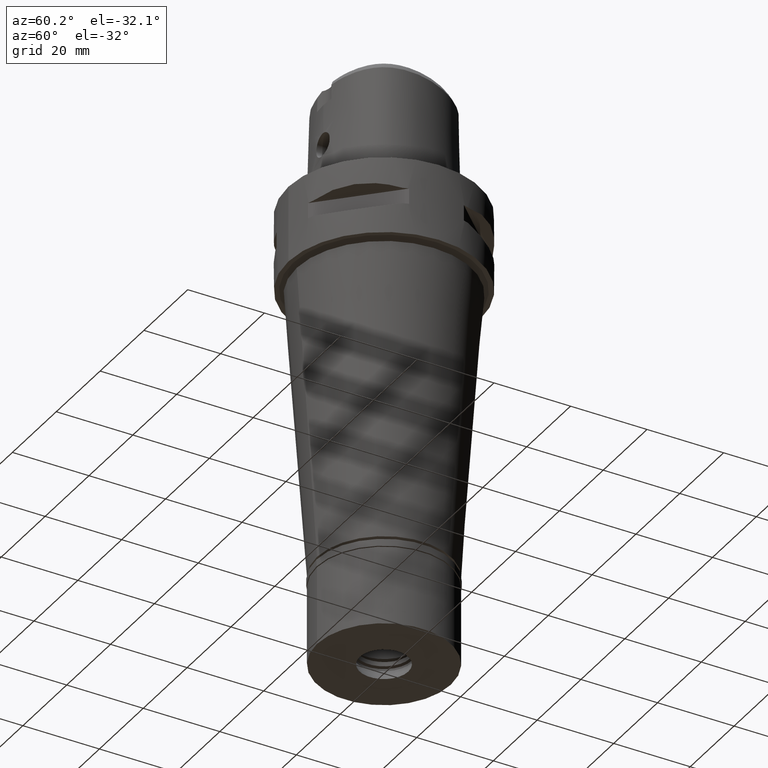
[diagram: clean part render]
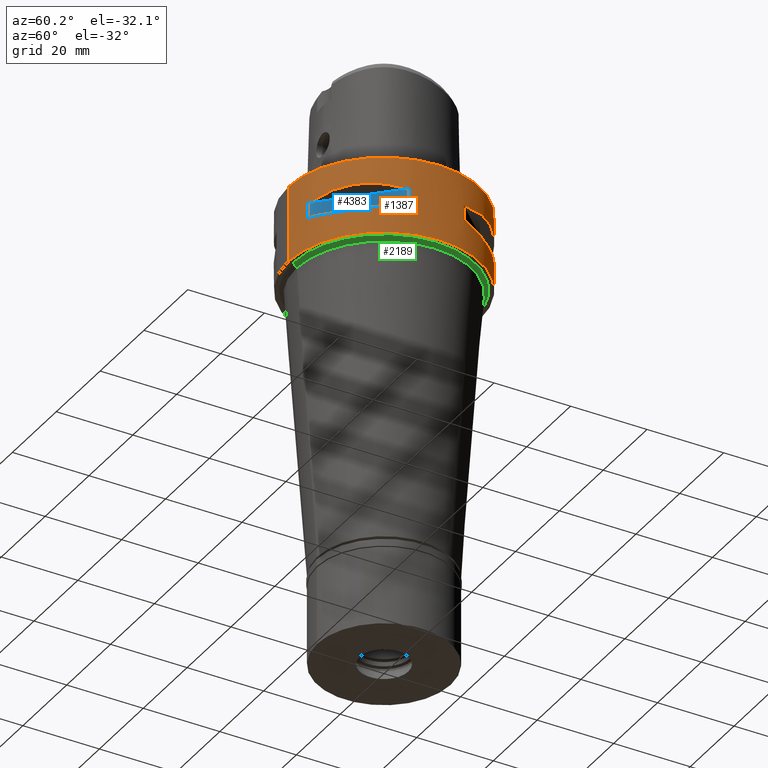
[diagram: same view with three faces highlighted in distinct colors, each labeled with its STEP entity id]
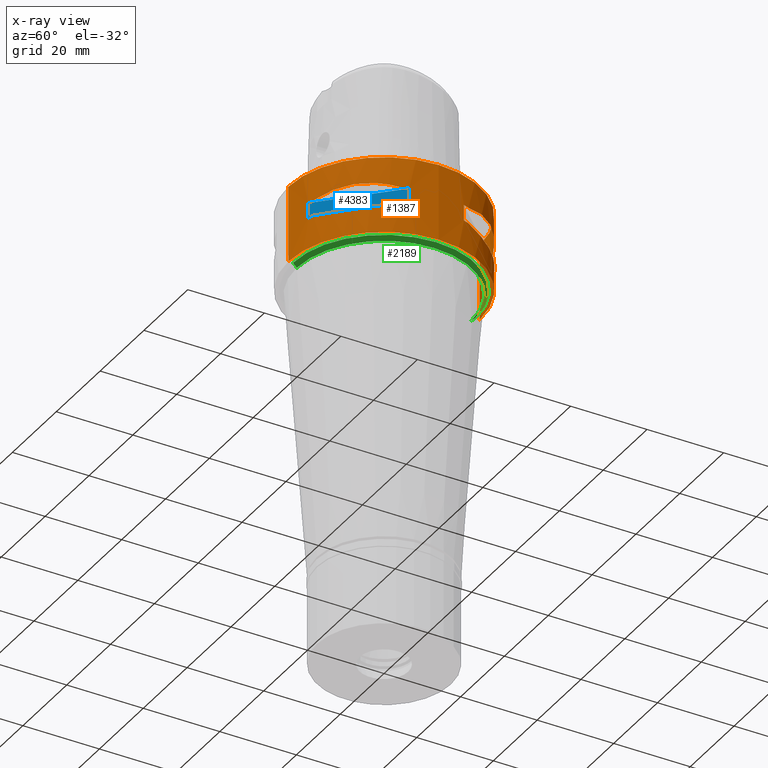
[diagram: x-ray of the same camera — body ghosted, the three highlighted faces saturated]
A machine part, auxiliary view with three faces highlighted in distinct colors.
The next image is the same camera in x-ray (body ghosted, the three faces saturated) — at least one of them is partly hidden behind the body in this view.
Their STEP definitions:

[orange] entity #1387 — the highlighted cylindrical surface (partial cylindrical patch) has radius 25 mm, axis along (0, 0, -1).
#13 = EDGE_CURVE ( 'NONE', #4450, #1569, #4097, .T. ) ;
#51 = CARTESIAN_POINT ( 'NONE',  ( 16.42437865147233111, -18.93096040785503220, -6.622505547239580181 ) ) ;
#105 = EDGE_CURVE ( 'NONE', #3764, #195, #4744, .T. ) ;
#142 = CARTESIAN_POINT ( 'NONE',  ( 23.95277699797999915, -7.159921374230999724, -7.950000000000000178 ) ) ;
#149 = VECTOR ( 'NONE', #450, 1000.000000000000000 ) ;
#173 = B_SPLINE_CURVE_WITH_KNOTS ( 'NONE', 3,
 ( #3807, #325, #3759, #271, #1115, #2626, #3358, #2261, #4534, #1806 ),
 .UNSPECIFIED., .F., .F.,
 ( 4, 2, 2, 2, 4 ),
 ( 0.0000000000000000000, 0.2500000000000000000, 0.5000000000000000000, 0.7500000000000000000, 1.000000000000000000 ),
 .UNSPECIFIED. ) ;
#184 = VERTEX_POINT ( 'NONE', #3859 ) ;
#185 = DIRECTION ( 'NONE',  ( 0.0000000000000000000, 0.0000000000000000000, 1.000000000000000000 ) ) ;
#195 = VERTEX_POINT ( 'NONE', #4710 ) ;
#238 = CARTESIAN_POINT ( 'NONE',  ( 21.05082155772089436, 13.48572973711263323, -13.04323036965343618 ) ) ;
#271 = CARTESIAN_POINT ( 'NONE',  ( 20.06077645874710313, 15.02693924547574866, -6.733132781305683601 ) ) ;
#322 = CARTESIAN_POINT ( 'NONE',  ( 23.13678124604550845, 9.515641234313701347, -12.27403800213050111 ) ) ;
#325 = CARTESIAN_POINT ( 'NONE',  ( 22.82438450745431524, 10.36314631860615876, -7.507504930525397135 ) ) ;
#328 = CARTESIAN_POINT ( 'NONE',  ( 20.92801700160322298, -13.67544437571097404, -13.07054629644096444 ) ) ;
#342 = ORIENTED_EDGE ( 'NONE', *, *, #1860, .F. ) ;
#346 = FACE_OUTER_BOUND ( 'NONE', #4954, .T. ) ;
#350 = CARTESIAN_POINT ( 'NONE',  ( 0.0000000000000000000, 1.294023040318999806E-14, 0.0000000000000000000 ) ) ;
#373 = CARTESIAN_POINT ( 'NONE',  ( 8.646484890756999775, -23.45715880140000209, -12.05000000000000071 ) ) ;
#397 = CARTESIAN_POINT ( 'NONE',  ( 12.20403021317722292, -21.82791133048418786, -12.83722430138600323 ) ) ;
#450 = DIRECTION ( 'NONE',  ( 0.0000000000000000000, 0.0000000000000000000, -1.000000000000000000 ) ) ;
#494 = CARTESIAN_POINT ( 'NONE',  ( 20.06074199769976829, -15.02698525043415145, -6.733118915137214167 ) ) ;
#519 = CARTESIAN_POINT ( 'NONE',  ( 10.36314631865839964, -22.82438450743505598, -7.507504930511911923 ) ) ;
#522 = ORIENTED_EDGE ( 'NONE', *, *, #3682, .T. ) ;
#532 = CARTESIAN_POINT ( 'NONE',  ( 0.0000000000000000000, 1.294023040318999806E-14, -7.950000000000000178 ) ) ;
#610 = VERTEX_POINT ( 'NONE', #4936 ) ;
#636 = AXIS2_PLACEMENT_3D ( 'NONE', #4711, #2728, #4261 ) ;
#642 = CARTESIAN_POINT ( 'NONE',  ( 8.646484890751999330, 23.45715880140000209, -12.05000000000000071 ) ) ;
#673 = FACE_BOUND ( 'NONE', #989, .T. ) ;
#679 = ORIENTED_EDGE ( 'NONE', *, *, #105, .F. ) ;
#693 = CARTESIAN_POINT ( 'NONE',  ( 20.02826730452214932, 15.06560254769159712, -13.27075471794772277 ) ) ;
#701 = VERTEX_POINT ( 'NONE', #3034 ) ;
#831 = ORIENTED_EDGE ( 'NONE', *, *, #1171, .T. ) ;
#863 = CIRCLE ( 'NONE', #4079, 24.99999999999999645 ) ;
#874 = VECTOR ( 'NONE', #918, 1000.000000000000000 ) ;
#889 = CARTESIAN_POINT ( 'NONE',  ( 0.0000000000000000000, 1.294023040318999806E-14, -12.05000000000000071 ) ) ;
#918 = DIRECTION ( 'NONE',  ( 0.0000000000000000000, 0.0000000000000000000, -1.000000000000000000 ) ) ;
#989 = EDGE_LOOP ( 'NONE', ( #2941, #1100, #3296, #679, #3108, #3364, #1014, #1348 ) ) ;
#1014 = ORIENTED_EDGE ( 'NONE', *, *, #4207, .T. ) ;
#1028 = CIRCLE ( 'NONE', #4872, 25.00000000000001066 ) ;
#1035 = VECTOR ( 'NONE', #3556, 1000.000000000000000 ) ;
#1041 = CARTESIAN_POINT ( 'NONE',  ( 13.74471461761685198, 20.88268233906084248, -13.08031795579737455 ) ) ;
#1078 = DIRECTION ( 'NONE',  ( 0.0000000000000000000, 0.0000000000000000000, -1.000000000000000000 ) ) ;
#1090 = CARTESIAN_POINT ( 'NONE',  ( 14.85488513038957592, 20.11654071401955335, -13.22076716108393413 ) ) ;
#1100 = ORIENTED_EDGE ( 'NONE', *, *, #4674, .F. ) ;
#1105 = CARTESIAN_POINT ( 'NONE',  ( 19.18226349639588690, -16.07509500018327131, -13.33749867752016449 ) ) ;
#1113 = CARTESIAN_POINT ( 'NONE',  ( 23.45715880140000209, 8.646484890756999775, -12.05000000000000071 ) ) ;
#1115 = CARTESIAN_POINT ( 'NONE',  ( 18.93096040781554024, 16.42437865151185505, -6.622505547253058289 ) ) ;
#1118 = CARTESIAN_POINT ( 'NONE',  ( 20.88268233906207172, -13.74471461761599400, -13.08031795579753087 ) ) ;
#1161 = CARTESIAN_POINT ( 'NONE',  ( 0.0000000000000000000, 1.294023040318999806E-14, -7.950000000000000178 ) ) ;
#1162 = VERTEX_POINT ( 'NONE', #2254 ) ;
#1171 = EDGE_CURVE ( 'NONE', #1569, #4809, #4948, .T. ) ;
#1259 = DIRECTION ( 'NONE',  ( 0.3458593956303108730, -0.9382863520558295534, 0.0000000000000000000 ) ) ;
#1295 = CARTESIAN_POINT ( 'NONE',  ( 22.82437128824116712, -10.36318218117755841, -7.507495686413087732 ) ) ;
#1305 = LINE ( 'NONE', #4366, #874 ) ;
#1348 = ORIENTED_EDGE ( 'NONE', *, *, #3101, .T. ) ;
#1360 = DIRECTION ( 'NONE',  ( 0.0000000000000000000, 0.0000000000000000000, -1.000000000000000000 ) ) ;
#1381 = VERTEX_POINT ( 'NONE', #3707 ) ;
#1387 = ADVANCED_FACE ( 'NONE', ( #346, #673, #2605 ), #2283, .T. ) ;
#1394 = CARTESIAN_POINT ( 'NONE',  ( 8.646484890756999775, -23.45715880140000209, -12.05000000000000071 ) ) ;
#1398 = CARTESIAN_POINT ( 'NONE',  ( 21.01958685664017068, 13.53433973752500918, -13.05032380590188446 ) ) ;
#1413 = EDGE_CURVE ( 'NONE', #3366, #4069, #173, .T. ) ;
#1451 = CARTESIAN_POINT ( 'NONE',  ( 21.20561591939435786, 13.24197703503935486, -13.00691327926270446 ) ) ;
#1459 = CARTESIAN_POINT ( 'NONE',  ( 15.06560254765663132, -20.02826730455345583, -13.27075471794622885 ) ) ;
#1476 = CARTESIAN_POINT ( 'NONE',  ( 10.38516041958474645, 22.81626994451295332, -12.49816953211793802 ) ) ;
#1483 = CARTESIAN_POINT ( 'NONE',  ( 16.43106916202457057, -18.92421359264944769, -13.37747608848233760 ) ) ;
#1497 = CARTESIAN_POINT ( 'NONE',  ( 21.00321793043583796, 13.55971422200765630, -13.05400030967367897 ) ) ;
#1532 = DIRECTION ( 'NONE',  ( 0.0000000000000000000, 0.0000000000000000000, -1.000000000000000000 ) ) ;
#1533 = CARTESIAN_POINT ( 'NONE',  ( 23.95277699797999915, 7.159921374230999724, -12.05000000000000071 ) ) ;
#1547 = AXIS2_PLACEMENT_3D ( 'NONE', #2182, #2211, #4511 ) ;
#1569 = VERTEX_POINT ( 'NONE', #4757 ) ;
#1588 = CARTESIAN_POINT ( 'NONE',  ( 8.646484890751999330, -23.45715880140000209, -7.949999999998999201 ) ) ;
#1589 = CARTESIAN_POINT ( 'NONE',  ( 0.0000000000000000000, 1.294023040318999806E-14, -7.950000000000000178 ) ) ;
#1604 = DIRECTION ( 'NONE',  ( 0.0000000000000000000, 0.0000000000000000000, 1.000000000000000000 ) ) ;
#1639 = CARTESIAN_POINT ( 'NONE',  ( 15.02693924554282034, -20.06077645869683579, -6.733132781285452673 ) ) ;
#1704 = CARTESIAN_POINT ( 'NONE',  ( 0.0000000000000000000, 1.294023040318999806E-14, -7.950000000000000178 ) ) ;
#1719 = CIRCLE ( 'NONE', #3232, 25.00000000000001066 ) ;
#1729 = DIRECTION ( 'NONE',  ( 0.9581110799190402094, 0.2863968549694120291, 0.0000000000000000000 ) ) ;
#1747 = CARTESIAN_POINT ( 'NONE',  ( 0.0000000000000000000, 1.294023040318999806E-14, -12.05000000000000071 ) ) ;
#1760 = CARTESIAN_POINT ( 'NONE',  ( 0.0000000000000000000, 25.00000000000000000, 0.0000000000000000000 ) ) ;
#1779 = CARTESIAN_POINT ( 'NONE',  ( 17.05439749817592343, 18.30096971347850499, -13.37751056790020598 ) ) ;
#1806 = CARTESIAN_POINT ( 'NONE',  ( 8.646484890751999330, 23.45715880140000209, -7.949999999998999201 ) ) ;
#1812 = VERTEX_POINT ( 'NONE', #3733 ) ;
#1836 = CARTESIAN_POINT ( 'NONE',  ( 18.30096971348435630, -17.05439749817190176, -13.37751056790094850 ) ) ;
#1860 = EDGE_CURVE ( 'NONE', #1162, #4919, #2678, .T. ) ;
#1869 = VECTOR ( 'NONE', #2172, 1000.000000000000000 ) ;
#1915 = AXIS2_PLACEMENT_3D ( 'NONE', #1704, #185, #2919 ) ;
#1931 = CARTESIAN_POINT ( 'NONE',  ( 20.77616787493668937, -13.90573822667970916, -13.10257122103325145 ) ) ;
#1961 = CARTESIAN_POINT ( 'NONE',  ( 23.45715880140000209, -8.646484890751999330, -7.949999999998999201 ) ) ;
#1996 = CARTESIAN_POINT ( 'NONE',  ( 23.95277699797999915, -7.159921374230999724, -12.05000000000000071 ) ) ;
#2035 = LINE ( 'NONE', #4287, #1035 ) ;
#2037 = CIRCLE ( 'NONE', #2424, 25.00000000000000000 ) ;
#2072 = CIRCLE ( 'NONE', #636, 24.99999999999999645 ) ;
#2158 = CIRCLE ( 'NONE', #1915, 25.00000000000001066 ) ;
#2172 = DIRECTION ( 'NONE',  ( 0.0000000000000000000, 0.0000000000000000000, -1.000000000000000000 ) ) ;
#2173 = ORIENTED_EDGE ( 'NONE', *, *, #3294, .F. ) ;
#2182 = CARTESIAN_POINT ( 'NONE',  ( 0.0000000000000000000, 1.294023040318999806E-14, 5.665000000000000036 ) ) ;
#2198 = EDGE_CURVE ( 'NONE', #4069, #1812, #3940, .T. ) ;
#2211 = DIRECTION ( 'NONE',  ( 0.0000000000000000000, 0.0000000000000000000, -1.000000000000000000 ) ) ;
#2215 = CARTESIAN_POINT ( 'NONE',  ( 10.78455809745186755, -22.58788056562029922, -12.56798337782941566 ) ) ;
#2254 = CARTESIAN_POINT ( 'NONE',  ( 23.45715880140000209, 8.646484890756999775, -12.05000000000000071 ) ) ;
#2258 = CARTESIAN_POINT ( 'NONE',  ( 16.07509500019029502, 19.18226349638565509, -13.33749867751885532 ) ) ;
#2261 = CARTESIAN_POINT ( 'NONE',  ( 11.99636231264435615, 22.00752022556853404, -7.175618606703327629 ) ) ;
#2264 = CARTESIAN_POINT ( 'NONE',  ( 13.55971422200820520, -21.00321793043535479, -13.05400030967370206 ) ) ;
#2283 = CYLINDRICAL_SURFACE ( 'NONE', #1547, 25.00000000000000000 ) ;
#2287 = EDGE_CURVE ( 'NONE', #4809, #3570, #2037, .T. ) ;
#2304 = EDGE_CURVE ( 'NONE', #3764, #4424, #1719, .T. ) ;
#2343 = CARTESIAN_POINT ( 'NONE',  ( 8.646484890751999330, 23.45715880140000209, -12.05000000000000071 ) ) ;
#2349 = LINE ( 'NONE', #1996, #4571 ) ;
#2360 = DIRECTION ( 'NONE',  ( 0.0000000000000000000, 0.0000000000000000000, 1.000000000000000000 ) ) ;
#2389 = AXIS2_PLACEMENT_3D ( 'NONE', #532, #3598, #1729 ) ;
#2424 = AXIS2_PLACEMENT_3D ( 'NONE', #3547, #2890, #3640 ) ;
#2426 = CARTESIAN_POINT ( 'NONE',  ( 18.93096040785499667, -16.42437865147237730, -6.622496303240420268 ) ) ;
#2428 = DIRECTION ( 'NONE',  ( 0.0000000000000000000, 0.0000000000000000000, -1.000000000000000000 ) ) ;
#2433 = CARTESIAN_POINT ( 'NONE',  ( 0.0000000000000000000, -25.00000000000000000, -20.00000000000000000 ) ) ;
#2546 = CARTESIAN_POINT ( 'NONE',  ( 13.62920640916679993, 20.95817024473859291, -13.06397973560673265 ) ) ;
#2551 = CARTESIAN_POINT ( 'NONE',  ( 23.45715880140000209, 8.646484890751999330, -7.949999999998999201 ) ) ;
#2585 = DIRECTION ( 'NONE',  ( 0.0000000000000000000, 1.000000000000000000, 0.0000000000000000000 ) ) ;
#2605 = FACE_BOUND ( 'NONE', #3729, .T. ) ;
#2626 = CARTESIAN_POINT ( 'NONE',  ( 16.42437865151178045, 18.93096040781560063, -6.622496303226939496 ) ) ;
#2630 = CARTESIAN_POINT ( 'NONE',  ( 20.56020460723486565, -14.22535762328174691, -13.14488865845287080 ) ) ;
#2646 = CARTESIAN_POINT ( 'NONE',  ( 13.90573822668135406, 20.77616787493428774, -13.10257122103294058 ) ) ;
#2678 = B_SPLINE_CURVE_WITH_KNOTS ( 'NONE', 3,
 ( #1113, #322, #2922, #4484, #3383, #1451, #3353, #238, #1398, #1497, #693, #4906, #1779, #2258, #1090, #3303, #2646, #1041, #4508, #2546, #3779, #4078, #1476, #642 ),
 .UNSPECIFIED., .F., .F.,
 ( 4, 1, 1, 1, 1, 1, 2, 2, 2, 1, 1, 1, 1, 1, 2, 2, 4 ),
 ( 0.0000000000000000000, 0.1249999999999982236, 0.1874999999999974465, 0.2187499999999970302, 0.2343749999999969469, 0.2421874999999968081, 0.2460937499999968359, 0.2499999999999968914, 0.4999999999999973355, 0.6249999999999973355, 0.6874999999999976685, 0.7187499999999978906, 0.7343749999999980016, 0.7421874999999980016, 0.7460937499999978906, 0.7499999999999978906, 1.000000000000000000 ),
 .UNSPECIFIED. ) ;
#2708 = VERTEX_POINT ( 'NONE', #4586 ) ;
#2728 = DIRECTION ( 'NONE',  ( 0.0000000000000000000, 0.0000000000000000000, -1.000000000000000000 ) ) ;
#2749 = CARTESIAN_POINT ( 'NONE',  ( 0.0000000000000000000, 1.294023040318999806E-14, -12.05000000000000071 ) ) ;
#2784 = CIRCLE ( 'NONE', #2389, 24.99999999999999645 ) ;
#2837 = ORIENTED_EDGE ( 'NONE', *, *, #1413, .T. ) ;
#2890 = DIRECTION ( 'NONE',  ( 0.0000000000000000000, 0.0000000000000000000, 1.000000000000000000 ) ) ;
#2919 = DIRECTION ( 'NONE',  ( 0.9382863520558295534, -0.3458593956303108730, 0.0000000000000000000 ) ) ;
#2922 = CARTESIAN_POINT ( 'NONE',  ( 22.58788056560981516, 10.78455809748034788, -12.56798337783676267 ) ) ;
#2941 = ORIENTED_EDGE ( 'NONE', *, *, #3690, .T. ) ;
#2981 = AXIS2_PLACEMENT_3D ( 'NONE', #350, #1532, #2585 ) ;
#2997 = AXIS2_PLACEMENT_3D ( 'NONE', #1161, #1604, #3131 ) ;
#3034 = CARTESIAN_POINT ( 'NONE',  ( 23.95277699797999915, 7.159921374235000080, -7.950000000000000178 ) ) ;
#3038 = CARTESIAN_POINT ( 'NONE',  ( 22.81626994452193458, -10.38516041956038727, -12.49816953211166037 ) ) ;
#3039 = EDGE_CURVE ( 'NONE', #4450, #3570, #4164, .T. ) ;
#3060 = VERTEX_POINT ( 'NONE', #1533 ) ;
#3081 = DIRECTION ( 'NONE',  ( 0.0000000000000000000, 0.0000000000000000000, 1.000000000000000000 ) ) ;
#3101 = EDGE_CURVE ( 'NONE', #1381, #610, #4018, .T. ) ;
#3108 = ORIENTED_EDGE ( 'NONE', *, *, #2304, .T. ) ;
#3131 = DIRECTION ( 'NONE',  ( 0.3458593956303108730, 0.9382863520558295534, 0.0000000000000000000 ) ) ;
#3144 = EDGE_CURVE ( 'NONE', #3732, #195, #2072, .T. ) ;
#3163 = CARTESIAN_POINT ( 'NONE',  ( 11.99631184318432275, -22.00754773654066199, -7.175632472871789069 ) ) ;
#3184 = LINE ( 'NONE', #4666, #149 ) ;
#3200 = VERTEX_POINT ( 'NONE', #142 ) ;
#3232 = AXIS2_PLACEMENT_3D ( 'NONE', #1747, #1360, #1259 ) ;
#3294 = EDGE_CURVE ( 'NONE', #2708, #1812, #2035, .T. ) ;
#3296 = ORIENTED_EDGE ( 'NONE', *, *, #3144, .T. ) ;
#3303 = CARTESIAN_POINT ( 'NONE',  ( 14.22535762328483067, 20.56020460723039278, -13.14488865845230592 ) ) ;
#3353 = CARTESIAN_POINT ( 'NONE',  ( 21.09754014381971388, 13.41274673326716282, -13.03250796600833716 ) ) ;
#3358 = CARTESIAN_POINT ( 'NONE',  ( 15.02698525050126044, 20.06074199764951871, -6.733118915116992120 ) ) ;
#3364 = ORIENTED_EDGE ( 'NONE', *, *, #4212, .F. ) ;
#3366 = VERTEX_POINT ( 'NONE', #2551 ) ;
#3383 = CARTESIAN_POINT ( 'NONE',  ( 21.41803043591995959, 12.89853354823032738, -12.95342092614324869 ) ) ;
#3403 = ORIENTED_EDGE ( 'NONE', *, *, #3750, .T. ) ;
#3409 = CARTESIAN_POINT ( 'NONE',  ( 13.41274673326371314, -21.09754014382099285, -13.03250796600744721 ) ) ;
#3431 = CARTESIAN_POINT ( 'NONE',  ( 13.53433973752400554, -21.01958685664054372, -13.05032380590162333 ) ) ;
#3456 = CARTESIAN_POINT ( 'NONE',  ( 20.97251445226583755, -13.60713573003076071, -13.06082541678112641 ) ) ;
#3495 = ORIENTED_EDGE ( 'NONE', *, *, #4846, .F. ) ;
#3547 = CARTESIAN_POINT ( 'NONE',  ( 0.0000000000000000000, 1.294023040318999806E-14, -20.00000000000000000 ) ) ;
#3556 = DIRECTION ( 'NONE',  ( 0.0000000000000000000, 0.0000000000000000000, 1.000000000000000000 ) ) ;
#3570 = VERTEX_POINT ( 'NONE', #4162 ) ;
#3579 = DIRECTION ( 'NONE',  ( 0.2863968549694120291, -0.9581110799190402094, 0.0000000000000000000 ) ) ;
#3598 = DIRECTION ( 'NONE',  ( 0.0000000000000000000, 0.0000000000000000000, 1.000000000000000000 ) ) ;
#3640 = DIRECTION ( 'NONE',  ( 0.0000000000000000000, -1.000000000000000000, 0.0000000000000000000 ) ) ;
#3682 = EDGE_CURVE ( 'NONE', #1162, #3060, #1028, .T. ) ;
#3690 = EDGE_CURVE ( 'NONE', #610, #3200, #2158, .T. ) ;
#3707 = CARTESIAN_POINT ( 'NONE',  ( 8.646484890751999330, -23.45715880140000209, -7.949999999998999201 ) ) ;
#3729 = EDGE_LOOP ( 'NONE', ( #4687, #2173, #4312, #342, #522, #3495, #3403, #2837 ) ) ;
#3732 = VERTEX_POINT ( 'NONE', #4400 ) ;
#3733 = CARTESIAN_POINT ( 'NONE',  ( 7.159921374230999724, 23.95277699797999915, -7.950000000000000178 ) ) ;
#3750 = EDGE_CURVE ( 'NONE', #701, #3366, #2784, .T. ) ;
#3759 = CARTESIAN_POINT ( 'NONE',  ( 22.00754773658079344, 11.99631184311074428, -7.175632472892017333 ) ) ;
#3764 = VERTEX_POINT ( 'NONE', #1394 ) ;
#3779 = CARTESIAN_POINT ( 'NONE',  ( 13.60713573003037880, 20.97251445226597966, -13.06082541678103404 ) ) ;
#3789 = CARTESIAN_POINT ( 'NONE',  ( 21.99328990740119139, -12.03062603421341770, -12.83394786307044022 ) ) ;
#3807 = CARTESIAN_POINT ( 'NONE',  ( 23.45715880140000209, 8.646484890751999330, -7.949999999998999201 ) ) ;
#3859 = CARTESIAN_POINT ( 'NONE',  ( 7.159921374235000080, -23.95277699797999915, -7.950000000000000178 ) ) ;
#3865 = ORIENTED_EDGE ( 'NONE', *, *, #2287, .T. ) ;
#3940 = CIRCLE ( 'NONE', #2997, 25.00000000000001066 ) ;
#3955 = DIRECTION ( 'NONE',  ( 0.2863968549694120291, 0.9581110799190402094, 0.0000000000000000000 ) ) ;
#3997 = VECTOR ( 'NONE', #1078, 1000.000000000000000 ) ;
#4018 = B_SPLINE_CURVE_WITH_KNOTS ( 'NONE', 3,
 ( #1588, #519, #3163, #1639, #51, #2426, #494, #4664, #1295, #1961 ),
 .UNSPECIFIED., .F., .F.,
 ( 4, 2, 2, 2, 4 ),
 ( 0.0000000000000000000, 0.2500000000000000000, 0.5000000000000000000, 0.7500000000000000000, 1.000000000000000000 ),
 .UNSPECIFIED. ) ;
#4069 = VERTEX_POINT ( 'NONE', #4786 ) ;
#4072 = ORIENTED_EDGE ( 'NONE', *, *, #3039, .F. ) ;
#4073 = DIRECTION ( 'NONE',  ( 0.9382863520558295534, 0.3458593956303108730, 0.0000000000000000000 ) ) ;
#4078 = CARTESIAN_POINT ( 'NONE',  ( 12.03062603423778754, 21.99328990739221013, -12.83394786307672675 ) ) ;
#4079 = AXIS2_PLACEMENT_3D ( 'NONE', #1589, #2360, #3579 ) ;
#4097 = CIRCLE ( 'NONE', #2981, 25.00000000000000000 ) ;
#4113 = CARTESIAN_POINT ( 'NONE',  ( 13.48572973711064193, -21.05082155772163688, -13.04323036965292637 ) ) ;
#4162 = CARTESIAN_POINT ( 'NONE',  ( 0.0000000000000000000, 25.00000000000000000, -20.00000000000000000 ) ) ;
#4163 = CARTESIAN_POINT ( 'NONE',  ( 20.95817024473895174, -13.62920640916654591, -13.06397973560678061 ) ) ;
#4164 = LINE ( 'NONE', #4191, #3997 ) ;
#4174 = CARTESIAN_POINT ( 'NONE',  ( 0.0000000000000000000, -25.00000000000000000, 0.0000000000000000000 ) ) ;
#4191 = CARTESIAN_POINT ( 'NONE',  ( 0.0000000000000000000, 25.00000000000000000, 0.0000000000000000000 ) ) ;
#4207 = EDGE_CURVE ( 'NONE', #184, #1381, #863, .T. ) ;
#4212 = EDGE_CURVE ( 'NONE', #184, #4424, #3184, .T. ) ;
#4261 = DIRECTION ( 'NONE',  ( 0.9581110799190402094, -0.2863968549694120291, 0.0000000000000000000 ) ) ;
#4287 = CARTESIAN_POINT ( 'NONE',  ( 7.159921374230999724, 23.95277699797999915, -12.05000000000000071 ) ) ;
#4300 = EDGE_CURVE ( 'NONE', #2708, #4919, #4397, .T. ) ;
#4312 = ORIENTED_EDGE ( 'NONE', *, *, #4300, .T. ) ;
#4366 = CARTESIAN_POINT ( 'NONE',  ( 23.95277699797999915, 7.159921374230999724, -7.950000000000000178 ) ) ;
#4385 = ORIENTED_EDGE ( 'NONE', *, *, #13, .T. ) ;
#4397 = CIRCLE ( 'NONE', #4886, 24.99999999999999645 ) ;
#4400 = CARTESIAN_POINT ( 'NONE',  ( 23.95277699797999915, -7.159921374235000080, -12.05000000000000071 ) ) ;
#4424 = VERTEX_POINT ( 'NONE', #4807 ) ;
#4450 = VERTEX_POINT ( 'NONE', #1760 ) ;
#4484 = CARTESIAN_POINT ( 'NONE',  ( 21.82791133047632215, 12.20403021319857828, -12.83722430139150994 ) ) ;
#4493 = CARTESIAN_POINT ( 'NONE',  ( 13.24197703503267931, -21.20561591939681634, -13.00691327926098495 ) ) ;
#4508 = CARTESIAN_POINT ( 'NONE',  ( 13.67544437571146609, 20.92801700160250533, -13.07054629644086674 ) ) ;
#4511 = DIRECTION ( 'NONE',  ( 0.0000000000000000000, -1.000000000000000000, 0.0000000000000000000 ) ) ;
#4517 = CARTESIAN_POINT ( 'NONE',  ( 12.89853354821786624, -21.41803043592453548, -12.95342092614003349 ) ) ;
#4534 = CARTESIAN_POINT ( 'NONE',  ( 10.36318218122983481, 22.82437128822192207, -7.507495686399606960 ) ) ;
#4563 = CARTESIAN_POINT ( 'NONE',  ( 23.45715880140000209, -8.646484890751999330, -12.05000000000000071 ) ) ;
#4571 = VECTOR ( 'NONE', #3081, 1000.000000000000000 ) ;
#4586 = CARTESIAN_POINT ( 'NONE',  ( 7.159921374235000080, 23.95277699797999915, -12.05000000000000071 ) ) ;
#4664 = CARTESIAN_POINT ( 'NONE',  ( 22.00752022560862642, -11.99636231257075991, -7.175618606723547899 ) ) ;
#4666 = CARTESIAN_POINT ( 'NONE',  ( 7.159921374230999724, -23.95277699797999915, -7.950000000000000178 ) ) ;
#4674 = EDGE_CURVE ( 'NONE', #3732, #3200, #2349, .T. ) ;
#4687 = ORIENTED_EDGE ( 'NONE', *, *, #2198, .T. ) ;
#4710 = CARTESIAN_POINT ( 'NONE',  ( 23.45715880140000209, -8.646484890751999330, -12.05000000000000071 ) ) ;
#4711 = CARTESIAN_POINT ( 'NONE',  ( 0.0000000000000000000, 1.294023040318999806E-14, -12.05000000000000071 ) ) ;
#4744 = B_SPLINE_CURVE_WITH_KNOTS ( 'NONE', 3,
 ( #373, #4914, #2215, #397, #4517, #4493, #3409, #4113, #3431, #2264, #1459, #1483, #1836, #1105, #4889, #2630, #1931, #1118, #328, #4163, #3456, #3789, #3038, #4563 ),
 .UNSPECIFIED., .F., .F.,
 ( 4, 1, 1, 1, 1, 1, 2, 2, 2, 1, 1, 1, 1, 1, 2, 2, 4 ),
 ( 0.0000000000000000000, 0.1250000000000068834, 0.1875000000000101308, 0.2187500000000117406, 0.2343750000000125733, 0.2421875000000129341, 0.2460937500000130174, 0.2500000000000131006, 0.5000000000000111022, 0.6250000000000101030, 0.6875000000000099920, 0.7187500000000099920, 0.7343750000000099920, 0.7421875000000098810, 0.7460937500000098810, 0.7500000000000098810, 1.000000000000000000 ),
 .UNSPECIFIED. ) ;
#4757 = CARTESIAN_POINT ( 'NONE',  ( 0.0000000000000000000, -25.00000000000000000, 0.0000000000000000000 ) ) ;
#4786 = CARTESIAN_POINT ( 'NONE',  ( 8.646484890751999330, 23.45715880140000209, -7.949999999998999201 ) ) ;
#4807 = CARTESIAN_POINT ( 'NONE',  ( 7.159921374230999724, -23.95277699797999915, -12.05000000000000071 ) ) ;
#4809 = VERTEX_POINT ( 'NONE', #2433 ) ;
#4827 = DIRECTION ( 'NONE',  ( 0.0000000000000000000, 0.0000000000000000000, -1.000000000000000000 ) ) ;
#4846 = EDGE_CURVE ( 'NONE', #701, #3060, #1305, .T. ) ;
#4872 = AXIS2_PLACEMENT_3D ( 'NONE', #2749, #4827, #4073 ) ;
#4886 = AXIS2_PLACEMENT_3D ( 'NONE', #889, #2428, #3955 ) ;
#4889 = CARTESIAN_POINT ( 'NONE',  ( 20.11654071402723432, -14.85488513038430192, -13.22076716108491290 ) ) ;
#4906 = CARTESIAN_POINT ( 'NONE',  ( 18.92421359264142211, 16.43106916203626611, -13.37747608848383329 ) ) ;
#4914 = CARTESIAN_POINT ( 'NONE',  ( 9.515641234297431694, -23.13678124605150188, -12.27403800212630536 ) ) ;
#4919 = VERTEX_POINT ( 'NONE', #2343 ) ;
#4936 = CARTESIAN_POINT ( 'NONE',  ( 23.45715880140000209, -8.646484890751999330, -7.949999999998999201 ) ) ;
#4948 = LINE ( 'NONE', #4174, #1869 ) ;
#4954 = EDGE_LOOP ( 'NONE', ( #4385, #831, #3865, #4072 ) ) ;

[blue] entity #4383 — the highlighted planar face has unit normal (-0.7071, 0.7071, 0).
#122 = ORIENTED_EDGE ( 'NONE', *, *, #1081, .F. ) ;
#142 = CARTESIAN_POINT ( 'NONE',  ( 23.95277699797999915, -7.159921374230999724, -7.950000000000000178 ) ) ;
#149 = VECTOR ( 'NONE', #450, 1000.000000000000000 ) ;
#184 = VERTEX_POINT ( 'NONE', #3859 ) ;
#257 = ORIENTED_EDGE ( 'NONE', *, *, #4674, .T. ) ;
#450 = DIRECTION ( 'NONE',  ( 0.0000000000000000000, 0.0000000000000000000, -1.000000000000000000 ) ) ;
#583 = ORIENTED_EDGE ( 'NONE', *, *, #4212, .T. ) ;
#584 = LINE ( 'NONE', #4041, #2807 ) ;
#647 = CARTESIAN_POINT ( 'NONE',  ( 26.16295090389999700, -4.949747468305999654, -7.950000000000000178 ) ) ;
#828 = ORIENTED_EDGE ( 'NONE', *, *, #2590, .T. ) ;
#1081 = EDGE_CURVE ( 'NONE', #184, #3200, #584, .T. ) ;
#1771 = LINE ( 'NONE', #2536, #1798 ) ;
#1798 = VECTOR ( 'NONE', #4068, 1000.000000000000114 ) ;
#1996 = CARTESIAN_POINT ( 'NONE',  ( 23.95277699797999915, -7.159921374230999724, -12.05000000000000071 ) ) ;
#2111 = PLANE ( 'NONE',  #3605 ) ;
#2349 = LINE ( 'NONE', #1996, #4571 ) ;
#2536 = CARTESIAN_POINT ( 'NONE',  ( 7.159921374230999724, -23.95277699797999915, -12.05000000000000071 ) ) ;
#2586 = EDGE_LOOP ( 'NONE', ( #122, #583, #828, #257 ) ) ;
#2590 = EDGE_CURVE ( 'NONE', #4424, #3732, #1771, .T. ) ;
#2807 = VECTOR ( 'NONE', #3571, 1000.000000000000114 ) ;
#3081 = DIRECTION ( 'NONE',  ( 0.0000000000000000000, 0.0000000000000000000, 1.000000000000000000 ) ) ;
#3184 = LINE ( 'NONE', #4666, #149 ) ;
#3200 = VERTEX_POINT ( 'NONE', #142 ) ;
#3332 = FACE_OUTER_BOUND ( 'NONE', #2586, .T. ) ;
#3571 = DIRECTION ( 'NONE',  ( 0.7071067811865474617, 0.7071067811865474617, 0.0000000000000000000 ) ) ;
#3605 = AXIS2_PLACEMENT_3D ( 'NONE', #647, #3652, #3710 ) ;
#3652 = DIRECTION ( 'NONE',  ( -0.7071067811865475727, 0.7071067811865475727, 0.0000000000000000000 ) ) ;
#3710 = DIRECTION ( 'NONE',  ( 0.0000000000000000000, 0.0000000000000000000, 1.000000000000000000 ) ) ;
#3732 = VERTEX_POINT ( 'NONE', #4400 ) ;
#3859 = CARTESIAN_POINT ( 'NONE',  ( 7.159921374235000080, -23.95277699797999915, -7.950000000000000178 ) ) ;
#4041 = CARTESIAN_POINT ( 'NONE',  ( 7.159921374230999724, -23.95277699797999915, -7.950000000000000178 ) ) ;
#4068 = DIRECTION ( 'NONE',  ( 0.7071067811865474617, 0.7071067811865474617, 0.0000000000000000000 ) ) ;
#4212 = EDGE_CURVE ( 'NONE', #184, #4424, #3184, .T. ) ;
#4383 = ADVANCED_FACE ( 'NONE', ( #3332 ), #2111, .F. ) ;
#4400 = CARTESIAN_POINT ( 'NONE',  ( 23.95277699797999915, -7.159921374235000080, -12.05000000000000071 ) ) ;
#4424 = VERTEX_POINT ( 'NONE', #4807 ) ;
#4571 = VECTOR ( 'NONE', #3081, 1000.000000000000000 ) ;
#4666 = CARTESIAN_POINT ( 'NONE',  ( 7.159921374230999724, -23.95277699797999915, -7.950000000000000178 ) ) ;
#4674 = EDGE_CURVE ( 'NONE', #3732, #3200, #2349, .T. ) ;
#4807 = CARTESIAN_POINT ( 'NONE',  ( 7.159921374230999724, -23.95277699797999915, -12.05000000000000071 ) ) ;

[green] entity #2189 — the highlighted conical surface has half-angle 45 deg.
#20 = CARTESIAN_POINT ( 'NONE',  ( 0.0000000000000000000, 0.0000000000000000000, -20.50000000000000000 ) ) ;
#63 = ORIENTED_EDGE ( 'NONE', *, *, #1230, .T. ) ;
#65 = DIRECTION ( 'NONE',  ( 0.0000000000000000000, 1.000000000000000000, 0.0000000000000000000 ) ) ;
#73 = VECTOR ( 'NONE', #319, 1000.000000000000000 ) ;
#319 = DIRECTION ( 'NONE',  ( 0.0000000000000000000, -0.7071067811861975194, -0.7071067811868976261 ) ) ;
#369 = DIRECTION ( 'NONE',  ( 0.0000000000000000000, 0.0000000000000000000, -1.000000000000000000 ) ) ;
#398 = AXIS2_PLACEMENT_3D ( 'NONE', #4136, #369, #2985 ) ;
#467 = ORIENTED_EDGE ( 'NONE', *, *, #3590, .T. ) ;
#556 = DIRECTION ( 'NONE',  ( 0.0000000000000000000, -1.000000000000000000, 0.0000000000000000000 ) ) ;
#710 = ORIENTED_EDGE ( 'NONE', *, *, #2455, .T. ) ;
#1138 = DIRECTION ( 'NONE',  ( 0.0000000000000000000, 0.0000000000000000000, 1.000000000000000000 ) ) ;
#1224 = AXIS2_PLACEMENT_3D ( 'NONE', #20, #1138, #65 ) ;
#1230 = EDGE_CURVE ( 'NONE', #3045, #2828, #4317, .T. ) ;
#1284 = CARTESIAN_POINT ( 'NONE',  ( 0.0000000000000000000, 0.0000000000000000000, -21.00000000000000000 ) ) ;
#1322 = ORIENTED_EDGE ( 'NONE', *, *, #3988, .F. ) ;
#1924 = FACE_OUTER_BOUND ( 'NONE', #2902, .T. ) ;
#1952 = CONICAL_SURFACE ( 'NONE', #1224, 23.29345966412000024, 0.7853981633972997312 ) ;
#1957 = AXIS2_PLACEMENT_3D ( 'NONE', #1284, #2811, #556 ) ;
#2043 = CARTESIAN_POINT ( 'NONE',  ( 0.0000000000000000000, -23.79345966412000024, -20.00000000000000000 ) ) ;
#2125 = CARTESIAN_POINT ( 'NONE',  ( 0.0000000000000000000, 22.79345966412000024, -21.00000000000000000 ) ) ;
#2133 = CARTESIAN_POINT ( 'NONE',  ( 0.0000000000000000000, 23.79345966412000024, -20.00000000000000000 ) ) ;
#2189 = ADVANCED_FACE ( 'NONE', ( #1924 ), #1952, .T. ) ;
#2455 = EDGE_CURVE ( 'NONE', #2828, #3802, #4832, .T. ) ;
#2811 = DIRECTION ( 'NONE',  ( 0.0000000000000000000, 0.0000000000000000000, 1.000000000000000000 ) ) ;
#2828 = VERTEX_POINT ( 'NONE', #3537 ) ;
#2902 = EDGE_LOOP ( 'NONE', ( #467, #63, #710, #1322 ) ) ;
#2972 = CARTESIAN_POINT ( 'NONE',  ( 0.0000000000000000000, 23.79345966412000024, -20.00000000000000000 ) ) ;
#2985 = DIRECTION ( 'NONE',  ( 0.0000000000000000000, 1.000000000000000000, 0.0000000000000000000 ) ) ;
#3045 = VERTEX_POINT ( 'NONE', #3790 ) ;
#3072 = VECTOR ( 'NONE', #3939, 1000.000000000000000 ) ;
#3537 = CARTESIAN_POINT ( 'NONE',  ( 0.0000000000000000000, -22.79345966412000024, -21.00000000000000000 ) ) ;
#3590 = EDGE_CURVE ( 'NONE', #4410, #3045, #4318, .T. ) ;
#3790 = CARTESIAN_POINT ( 'NONE',  ( 0.0000000000000000000, -23.79345966412000024, -20.00000000000000000 ) ) ;
#3802 = VERTEX_POINT ( 'NONE', #2125 ) ;
#3939 = DIRECTION ( 'NONE',  ( 0.0000000000000000000, 0.7071067811861975194, -0.7071067811868976261 ) ) ;
#3988 = EDGE_CURVE ( 'NONE', #4410, #3802, #4102, .T. ) ;
#4102 = LINE ( 'NONE', #2972, #73 ) ;
#4136 = CARTESIAN_POINT ( 'NONE',  ( 0.0000000000000000000, 0.0000000000000000000, -20.00000000000000000 ) ) ;
#4317 = LINE ( 'NONE', #2043, #3072 ) ;
#4318 = CIRCLE ( 'NONE', #398, 23.79345966412000024 ) ;
#4410 = VERTEX_POINT ( 'NONE', #2133 ) ;
#4832 = CIRCLE ( 'NONE', #1957, 22.79345966412000024 ) ;